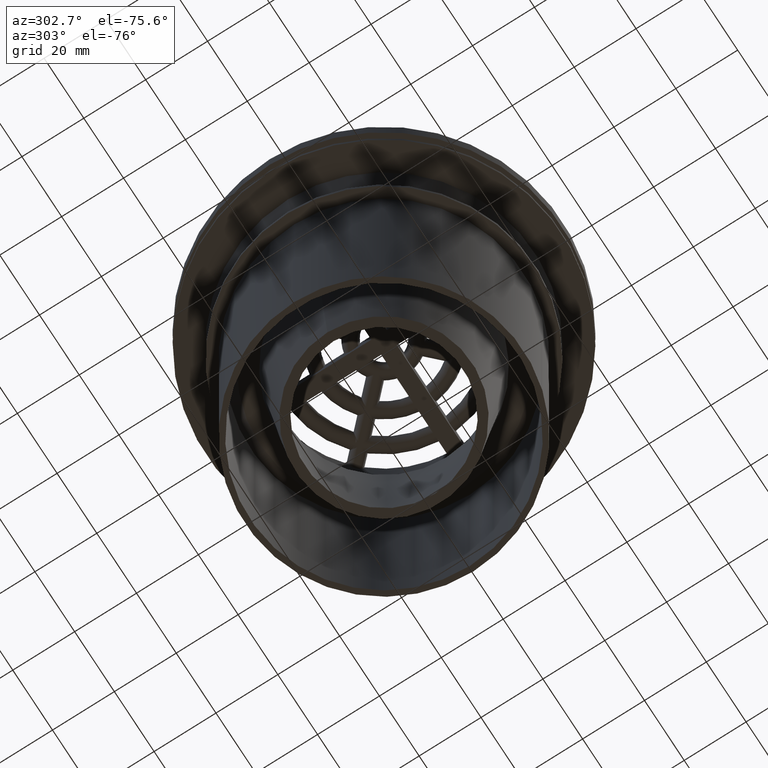
[diagram: clean part render]
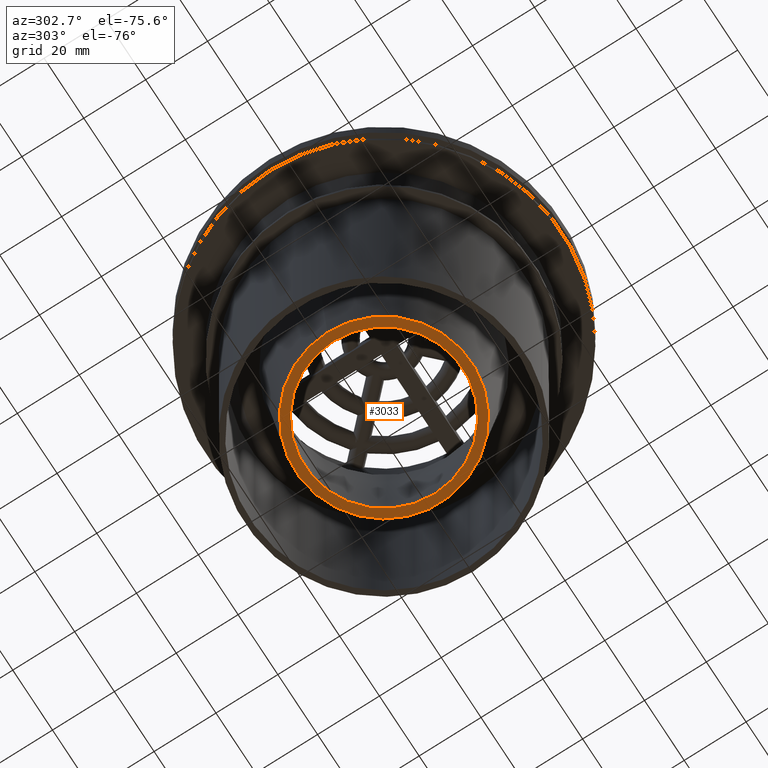
[diagram: same view with one face highlighted and labeled with its STEP entity id]
A machine part, auxiliary view. The second image highlights one B-rep face of the part: STEP entity #3033.
In plain terms, the highlighted planar face has unit normal (0, 0, -1).
Its self-contained STEP definition (entity closure, byte-faithful):
#1455=ORIENTED_EDGE('',*,*,#1909,.T.);
#1456=ORIENTED_EDGE('',*,*,#1908,.F.);
#1908=EDGE_CURVE('',#2210,#2210,#2380,.T.);
#1909=EDGE_CURVE('',#2211,#2211,#2381,.T.);
#2210=VERTEX_POINT('',#5461);
#2211=VERTEX_POINT('',#5464);
#2380=CIRCLE('',#3372,25.478);
#2381=CIRCLE('',#3374,28.478);
#2597=EDGE_LOOP('',(#1455));
#2598=EDGE_LOOP('',(#1456));
#2827=FACE_BOUND('',#2597,.T.);
#2828=FACE_BOUND('',#2598,.T.);
#2900=PLANE('',#3373);
#3033=ADVANCED_FACE('',(#2827,#2828),#2900,.T.);
#3372=AXIS2_PLACEMENT_3D('',#5460,#4181,#4182);
#3373=AXIS2_PLACEMENT_3D('',#5462,#4183,#4184);
#3374=AXIS2_PLACEMENT_3D('',#5463,#4185,#4186);
#4181=DIRECTION('',(0.,0.,-1.));
#4182=DIRECTION('',(-1.,0.,0.));
#4183=DIRECTION('',(0.,0.,-1.));
#4184=DIRECTION('',(-1.,0.,0.));
#4185=DIRECTION('',(0.,0.,-1.));
#4186=DIRECTION('',(-1.,0.,0.));
#5460=CARTESIAN_POINT('',(0.,0.,-94.223));
#5461=CARTESIAN_POINT('',(-25.478,0.,-94.223));
#5462=CARTESIAN_POINT('',(-25.478,0.,-94.223));
#5463=CARTESIAN_POINT('',(0.,0.,-94.223));
#5464=CARTESIAN_POINT('',(-28.478,0.,-94.223));